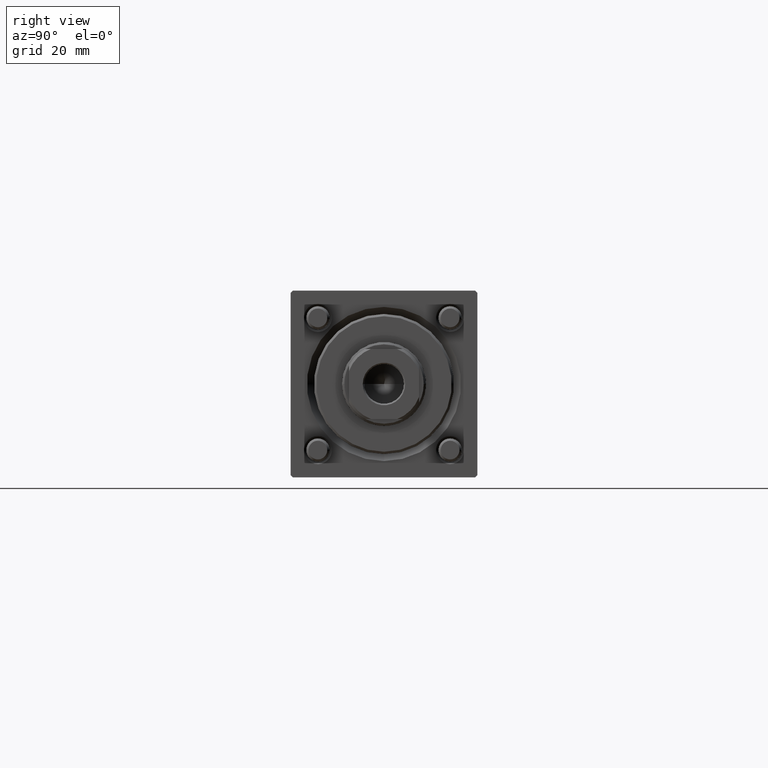
[diagram: clean part render]
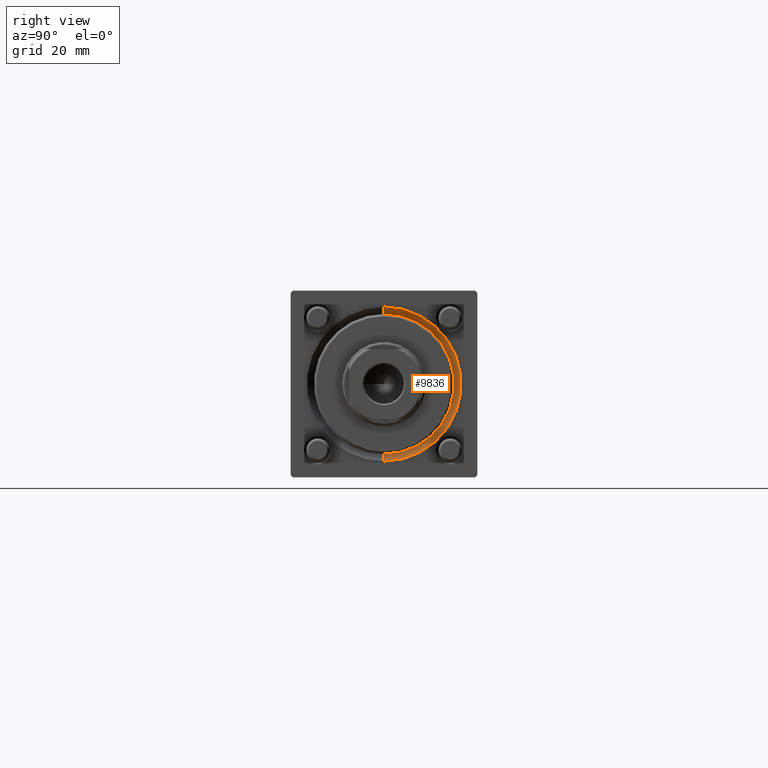
[diagram: same view with one face highlighted and labeled with its STEP entity id]
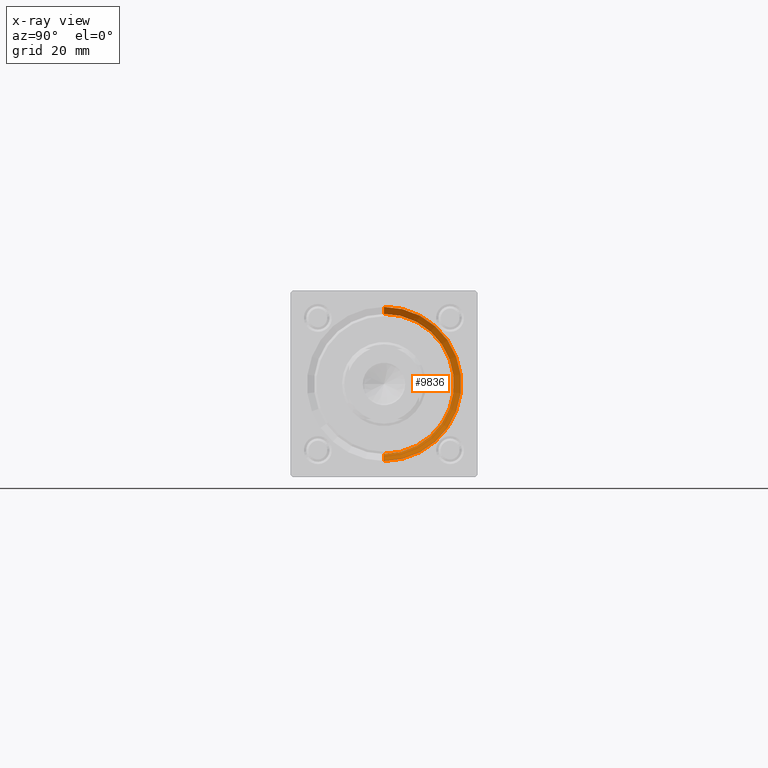
[diagram: x-ray of the same camera — body ghosted, the highlighted face saturated]
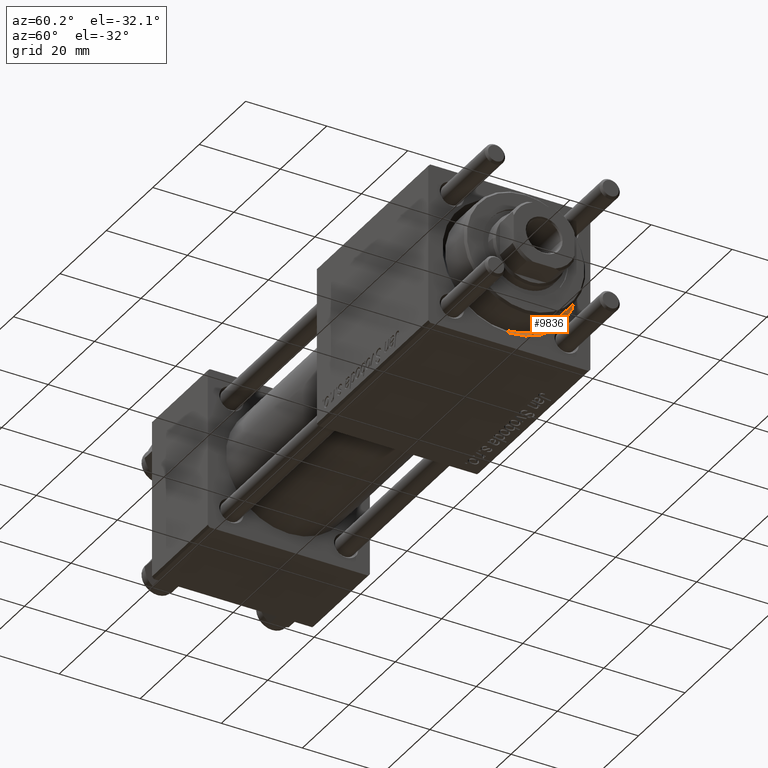
[diagram: same view with one face highlighted and labeled with its STEP entity id]
A machine part, right view. The second image highlights one B-rep face of the part: STEP entity #9836.
The next image is the same camera in x-ray: the body ghosted, the highlighted face saturated — about 0% of this face is hidden behind the body in this view.
A second angle (auxiliary view) of the same face is appended — the face is thin or edge-on in the first view.
In plain terms, the highlighted conical surface has half-angle 45 deg.
Its self-contained STEP definition (entity closure, byte-faithful):
#863 = EDGE_CURVE ( 'NONE', #9943, #38012, #31701, .T. ) ;
#2120 = ORIENTED_EDGE ( 'NONE', *, *, #33421, .T. ) ;
#3627 = EDGE_CURVE ( 'NONE', #15208, #4775, #52869, .T. ) ;
#4643 = CARTESIAN_POINT ( 'NONE',  ( 117.5000000000000000, 1.836970198721029589E-15, 15.00000000000000000 ) ) ;
#4775 = VERTEX_POINT ( 'NONE', #44743 ) ;
#5187 = ORIENTED_EDGE ( 'NONE', *, *, #3627, .F. ) ;
#5196 = FACE_OUTER_BOUND ( 'NONE', #55793, .T. ) ;
#6908 = ORIENTED_EDGE ( 'NONE', *, *, #863, .F. ) ;
#8524 = CARTESIAN_POINT ( 'NONE',  ( 117.5000000000000000, 0.000000000000000000, -15.00000000000000000 ) ) ;
#9836 = ADVANCED_FACE ( 'NONE', ( #5196 ), #51964, .F. ) ;
#9943 = VERTEX_POINT ( 'NONE', #19794 ) ;
#10392 = DIRECTION ( 'NONE',  ( -1.000000000000000000, -0.000000000000000000, -0.000000000000000000 ) ) ;
#10624 = DIRECTION ( 'NONE',  ( 1.000000000000000000, 0.000000000000000000, 0.000000000000000000 ) ) ;
#11014 = DIRECTION ( 'NONE',  ( 0.7071067811865474617, 8.659560562354932858E-17, 0.7071067811865474617 ) ) ;
#12513 = AXIS2_PLACEMENT_3D ( 'NONE', #39975, #31109, #40247 ) ;
#13331 = ORIENTED_EDGE ( 'NONE', *, *, #30368, .F. ) ;
#15208 = VERTEX_POINT ( 'NONE', #25999 ) ;
#19606 = CARTESIAN_POINT ( 'NONE',  ( 117.5000000000000000, 1.836970198721029589E-15, 15.00000000000000000 ) ) ;
#19794 = CARTESIAN_POINT ( 'NONE',  ( 117.5000000000000000, 0.000000000000000000, -15.00000000000000000 ) ) ;
#23820 = DIRECTION ( 'NONE',  ( 0.000000000000000000, 0.000000000000000000, -1.000000000000000000 ) ) ;
#25999 = CARTESIAN_POINT ( 'NONE',  ( 119.0000000000000142, 2.020667218593134678E-15, 16.50000000000001421 ) ) ;
#30368 = EDGE_CURVE ( 'NONE', #38012, #15208, #45402, .T. ) ;
#31109 = DIRECTION ( 'NONE',  ( 1.000000000000000000, 0.000000000000000000, 0.000000000000000000 ) ) ;
#31300 = CARTESIAN_POINT ( 'NONE',  ( 117.5000000000000000, 0.000000000000000000, 0.000000000000000000 ) ) ;
#31701 = CIRCLE ( 'NONE', #12513, 15.00000000000000000 ) ;
#31903 = DIRECTION ( 'NONE',  ( 0.000000000000000000, 0.000000000000000000, 1.000000000000000000 ) ) ;
#33421 = EDGE_CURVE ( 'NONE', #9943, #4775, #35469, .T. ) ;
#35469 = LINE ( 'NONE', #8524, #36921 ) ;
#35928 = CARTESIAN_POINT ( 'NONE',  ( 119.0000000000000142, 0.000000000000000000, 0.000000000000000000 ) ) ;
#36921 = VECTOR ( 'NONE', #39485, 1000.000000000000114 ) ;
#38012 = VERTEX_POINT ( 'NONE', #4643 ) ;
#39485 = DIRECTION ( 'NONE',  ( 0.7071067811865474617, 0.000000000000000000, -0.7071067811865474617 ) ) ;
#39975 = CARTESIAN_POINT ( 'NONE',  ( 117.5000000000000000, 0.000000000000000000, 0.000000000000000000 ) ) ;
#40247 = DIRECTION ( 'NONE',  ( 0.000000000000000000, 0.000000000000000000, 1.000000000000000000 ) ) ;
#42321 = VECTOR ( 'NONE', #11014, 1000.000000000000114 ) ;
#42793 = AXIS2_PLACEMENT_3D ( 'NONE', #35928, #10392, #31903 ) ;
#44743 = CARTESIAN_POINT ( 'NONE',  ( 119.0000000000000142, 0.000000000000000000, -16.50000000000001421 ) ) ;
#45402 = LINE ( 'NONE', #19606, #42321 ) ;
#49211 = AXIS2_PLACEMENT_3D ( 'NONE', #31300, #10624, #23820 ) ;
#51964 = CONICAL_SURFACE ( 'NONE', #49211, 15.00000000000000000, 0.7853981633974482790 ) ;
#52869 = CIRCLE ( 'NONE', #42793, 16.50000000000001421 ) ;
#55793 = EDGE_LOOP ( 'NONE', ( #13331, #6908, #2120, #5187 ) ) ;